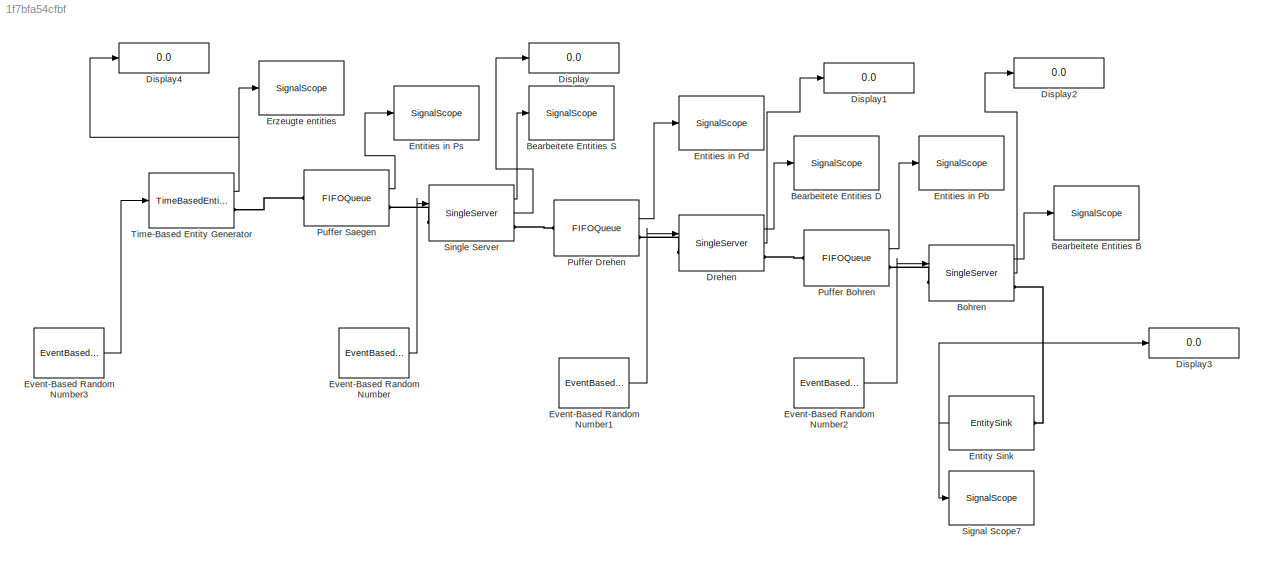
MODEL slx_1f7bfa54cfbf
KIND model
CONFIG AbsTol = auto
CONFIG EnableMultiTasking = off
CONFIG FixedStep = auto
CONFIG MaxStep = auto
CONFIG MinStep = auto
CONFIG RelTol = 1e-3
CONFIG SampleTimeConstraint = Unconstrained
CONFIG Solver = VariableStepAuto
CONFIG SolverName = VariableStepAuto
CONFIG StartTime = 0.0
CONFIG StopTime = 60
BLOCK [SignalScope] Bearbeitete Entities B
  CopyFcn = des.scope.CallbackSupport('seCopyFcn',gcbh)
  DeleteFcn = des.scope.CallbackSupport('seDeleteFcn',gcbh)
  InputPortMap = u0
  LoadFcn = des.scope.CallbackSupport('seLoadFcn',gcbh)
  NameChangeFcn = des.scope.CallbackSupport('seNameChangeFcn',gcbh)
  OpenFcn = des.scope.CallbackSupport('seOpenFcn',gcbh)
  Ports = [1]
  PreSaveFcn = des.scope.CallbackSupport('sePreSaveFcn',gcbh)
  StartFcn = des.scope.CallbackSupport('seStartFcn',gcbh)
  StopFcn = des.scope.CallbackSupport('seStopFcn',gcbh)
BLOCK [SignalScope] Bearbeitete Entities D
  CopyFcn = des.scope.CallbackSupport('seCopyFcn',gcbh)
  DeleteFcn = des.scope.CallbackSupport('seDeleteFcn',gcbh)
  InputPortMap = u0
  LoadFcn = des.scope.CallbackSupport('seLoadFcn',gcbh)
  NameChangeFcn = des.scope.CallbackSupport('seNameChangeFcn',gcbh)
  OpenFcn = des.scope.CallbackSupport('seOpenFcn',gcbh)
  Ports = [1]
  PreSaveFcn = des.scope.CallbackSupport('sePreSaveFcn',gcbh)
  StartFcn = des.scope.CallbackSupport('seStartFcn',gcbh)
  StopFcn = des.scope.CallbackSupport('seStopFcn',gcbh)
BLOCK [SignalScope] Bearbeitete Entities S
  CopyFcn = des.scope.CallbackSupport('seCopyFcn',gcbh)
  DeleteFcn = des.scope.CallbackSupport('seDeleteFcn',gcbh)
  InputPortMap = u0
  LoadFcn = des.scope.CallbackSupport('seLoadFcn',gcbh)
  NameChangeFcn = des.scope.CallbackSupport('seNameChangeFcn',gcbh)
  OpenFcn = des.scope.CallbackSupport('seOpenFcn',gcbh)
  Ports = [1]
  PreSaveFcn = des.scope.CallbackSupport('sePreSaveFcn',gcbh)
  StartFcn = des.scope.CallbackSupport('seStartFcn',gcbh)
  StopFcn = des.scope.CallbackSupport('seStopFcn',gcbh)
BLOCK [SingleServer] Bohren
  InputPortMap = u0
  OutputPortMap = o0,o5
  Ports = [1, 2, 0, 0, 0, 1, 1]
  ServiceTime = ts_bohr
  ServiceTimeFrom = Signal port t
  StatNumberDeparted = on
  StatUtilization = on
BLOCK [Display] Display
  Decimation = 1
  Ports = [1]
BLOCK [Display] Display1
  Decimation = 1
  Ports = [1]
BLOCK [Display] Display2
  Decimation = 1
  Ports = [1]
BLOCK [Display] Display3
  Decimation = 1
  Ports = [1]
BLOCK [Display] Display4
  Decimation = 1
  Ports = [1]
BLOCK [SingleServer] Drehen
  InputPortMap = u0
  OutputPortMap = o0,o5
  Ports = [1, 2, 0, 0, 0, 1, 1]
  ServiceTime = ts_dreh
  ServiceTimeFrom = Signal port t
  StatNumberDeparted = on
  StatUtilization = on
BLOCK [SignalScope] Entities in Pb
  CopyFcn = des.scope.CallbackSupport('seCopyFcn',gcbh)
  DeleteFcn = des.scope.CallbackSupport('seDeleteFcn',gcbh)
  InputPortMap = u0
  LoadFcn = des.scope.CallbackSupport('seLoadFcn',gcbh)
  NameChangeFcn = des.scope.CallbackSupport('seNameChangeFcn',gcbh)
  OpenFcn = des.scope.CallbackSupport('seOpenFcn',gcbh)
  Ports = [1]
  PreSaveFcn = des.scope.CallbackSupport('sePreSaveFcn',gcbh)
  StartFcn = des.scope.CallbackSupport('seStartFcn',gcbh)
  StopFcn = des.scope.CallbackSupport('seStopFcn',gcbh)
BLOCK [SignalScope] Entities in Pd
  CopyFcn = des.scope.CallbackSupport('seCopyFcn',gcbh)
  DeleteFcn = des.scope.CallbackSupport('seDeleteFcn',gcbh)
  InputPortMap = u0
  LoadFcn = des.scope.CallbackSupport('seLoadFcn',gcbh)
  NameChangeFcn = des.scope.CallbackSupport('seNameChangeFcn',gcbh)
  OpenFcn = des.scope.CallbackSupport('seOpenFcn',gcbh)
  Ports = [1]
  PreSaveFcn = des.scope.CallbackSupport('sePreSaveFcn',gcbh)
  StartFcn = des.scope.CallbackSupport('seStartFcn',gcbh)
  StopFcn = des.scope.CallbackSupport('seStopFcn',gcbh)
BLOCK [SignalScope] Entities in Ps
  CopyFcn = des.scope.CallbackSupport('seCopyFcn',gcbh)
  DeleteFcn = des.scope.CallbackSupport('seDeleteFcn',gcbh)
  InputPortMap = u0
  LoadFcn = des.scope.CallbackSupport('seLoadFcn',gcbh)
  NameChangeFcn = des.scope.CallbackSupport('seNameChangeFcn',gcbh)
  OpenFcn = des.scope.CallbackSupport('seOpenFcn',gcbh)
  Ports = [1]
  PreSaveFcn = des.scope.CallbackSupport('sePreSaveFcn',gcbh)
  StartFcn = des.scope.CallbackSupport('seStartFcn',gcbh)
  StopFcn = des.scope.CallbackSupport('seStopFcn',gcbh)
BLOCK [EntitySink] Entity Sink
  OutputPortMap = o0
  Ports = [0, 1, 0, 0, 0, 1]
  StatNumberArrived = on
BLOCK [SignalScope] Erzeugte entities
  CopyFcn = des.scope.CallbackSupport('seCopyFcn',gcbh)
  DeleteFcn = des.scope.CallbackSupport('seDeleteFcn',gcbh)
  InputPortMap = u0
  LoadFcn = des.scope.CallbackSupport('seLoadFcn',gcbh)
  NameChangeFcn = des.scope.CallbackSupport('seNameChangeFcn',gcbh)
  OpenFcn = des.scope.CallbackSupport('seOpenFcn',gcbh)
  Ports = [1]
  PreSaveFcn = des.scope.CallbackSupport('sePreSaveFcn',gcbh)
  StartFcn = des.scope.CallbackSupport('seStartFcn',gcbh)
  StopFcn = des.scope.CallbackSupport('seStopFcn',gcbh)
BLOCK [EventBasedRandomNumber] Event-Based Random Number
  Distribution = Uniform
  OutputPortMap = o0
  Ports = [0, 1]
  maxUnif = 1.7
  minUnif = 0.3
BLOCK [EventBasedRandomNumber] Event-Based Random Number1
  Distribution = Triangular
  OutputPortMap = o0
  Ports = [0, 1]
  minTri = 0.5
BLOCK [EventBasedRandomNumber] Event-Based Random Number2
  Distribution = Uniform
  OutputPortMap = o0
  Ports = [0, 1]
  maxUnif = 0.7
  minUnif = 0.3
BLOCK [EventBasedRandomNumber] Event-Based Random Number3
  OutputPortMap = o0
  Ports = [0, 1]
  maxUnif = 1.7
  minUnif = 0.3
BLOCK [FIFOQueue] Puffer Bohren
  Capacity = inf
  OutputPortMap = o1
  Ports = [0, 1, 0, 0, 0, 1, 1]
  StatNumberInBlock = on
BLOCK [FIFOQueue] Puffer Drehen
  Capacity = 10
  OutputPortMap = o1
  Ports = [0, 1, 0, 0, 0, 1, 1]
  StatNumberInBlock = on
BLOCK [FIFOQueue] Puffer Saegen
  Capacity = inf
  OutputPortMap = o1
  Ports = [0, 1, 0, 0, 0, 1, 1]
  StatNumberInBlock = on
BLOCK [SignalScope] Signal Scope7
  CopyFcn = des.scope.CallbackSupport('seCopyFcn',gcbh)
  DeleteFcn = des.scope.CallbackSupport('seDeleteFcn',gcbh)
  InputPortMap = u0
  LoadFcn = des.scope.CallbackSupport('seLoadFcn',gcbh)
  NameChangeFcn = des.scope.CallbackSupport('seNameChangeFcn',gcbh)
  OpenFcn = des.scope.CallbackSupport('seOpenFcn',gcbh)
  Ports = [1]
  PreSaveFcn = des.scope.CallbackSupport('sePreSaveFcn',gcbh)
  StartFcn = des.scope.CallbackSupport('seStartFcn',gcbh)
  StopFcn = des.scope.CallbackSupport('seStopFcn',gcbh)
BLOCK [SingleServer] Single Server
  InputPortMap = u0
  OutputPortMap = o0,o5
  Ports = [1, 2, 0, 0, 0, 1, 1]
  ServiceTime = ts_sage
  ServiceTimeFrom = Signal port t
  StatNumberDeparted = on
  StatUtilization = on
BLOCK [TimeBasedEntityGenerator] Time-Based Entity Generator
  GenerateEntitiesUpon = Intergeneration time from port t
  InputPortMap = u0
  OutputPortMap = o0
  Ports = [1, 1, 0, 0, 0, 0, 1]
  StatNumberDeparted = on
LINE Bohren:1 -> Bearbeitete Entities B:1
LINE Bohren:2 -> Display2:1
LINE Drehen:1 -> Bearbeitete Entities D:1
LINE Drehen:2 -> Display1:1
NET Entity Sink:1 -> Display3:1, Signal Scope7:1
LINE Event-Based Random Number1:1 -> Drehen:1
LINE Event-Based Random Number2:1 -> Bohren:1
LINE Event-Based Random Number3:1 -> Time-Based Entity Generator:1
LINE Event-Based Random Number:1 -> Single Server:1
LINE Puffer Bohren:1 -> Entities in Pb:1
LINE Puffer Drehen:1 -> Entities in Pd:1
LINE Puffer Saegen:1 -> Entities in Ps:1
LINE Single Server:1 -> Bearbeitete Entities S:1
LINE Single Server:2 -> Display:1
NET Time-Based Entity Generator:1 -> Display4:1, Erzeugte entities:1
PLINE Bohren:LConn1 -- Puffer Bohren:RConn1
PLINE Bohren:RConn1 -- Entity Sink:LConn1
PLINE Drehen:LConn1 -- Puffer Drehen:RConn1
PLINE Drehen:RConn1 -- Puffer Bohren:LConn1
PLINE Puffer Drehen:LConn1 -- Single Server:RConn1
PLINE Puffer Saegen:LConn1 -- Time-Based Entity Generator:RConn1
PLINE Puffer Saegen:RConn1 -- Single Server:LConn1
note: NET lines group one-source signal fan-out (src -> all destinations, sorted); 1:1 wires keep LINE
